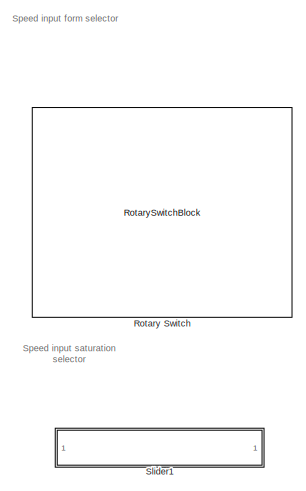
[diagram: root canvas - part 1/4, top left region]
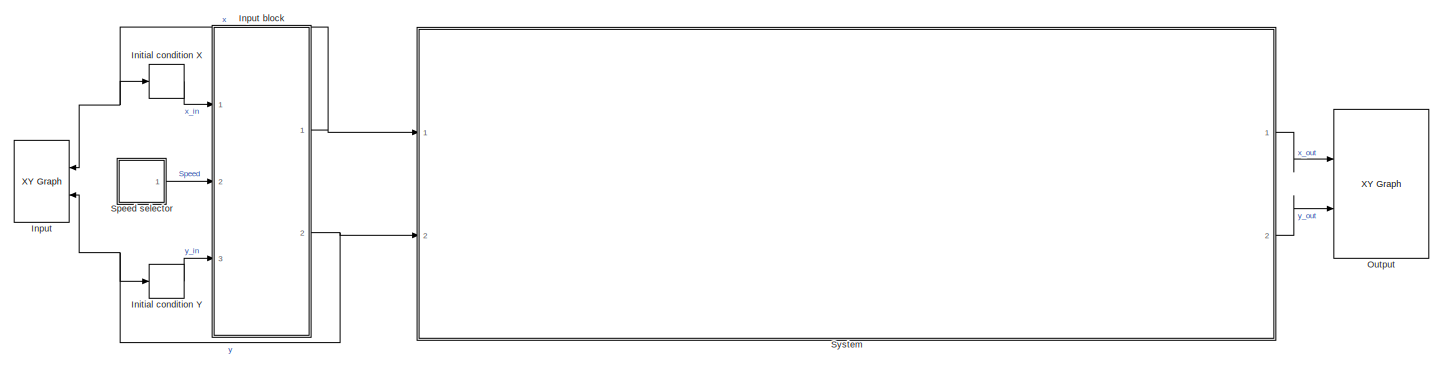
[diagram: root canvas - part 2/4, central region]
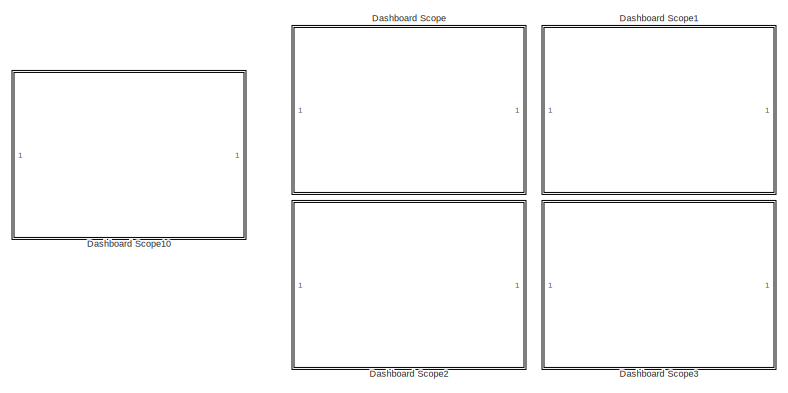
[diagram: root canvas - part 3/4, bottom left region]
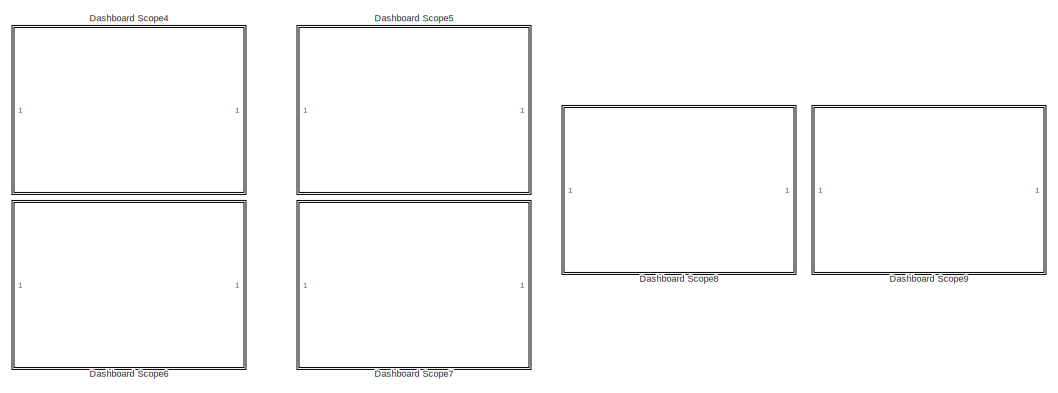
[diagram: root canvas - part 4/4, bottom right region]
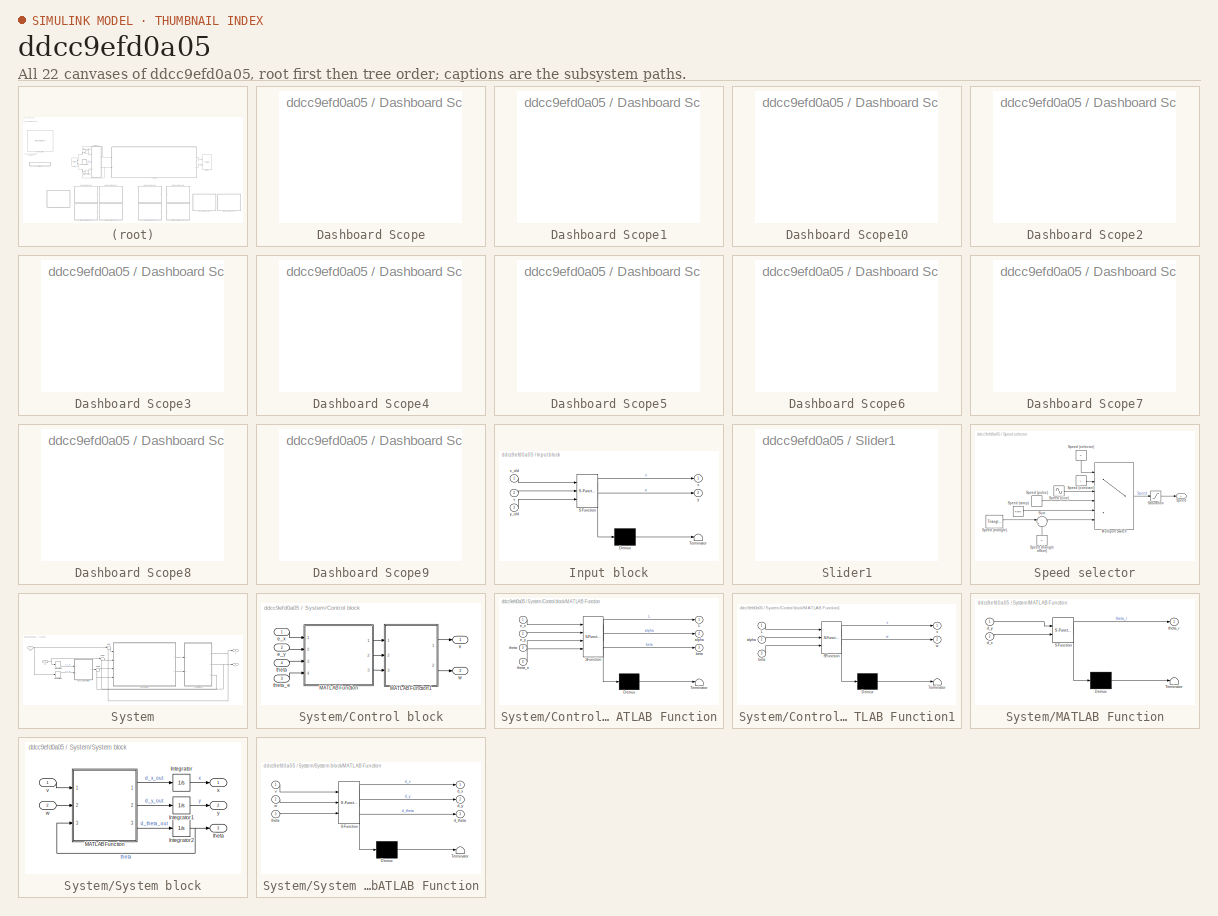
[diagram: thumbnail index - all 22 canvases of the model, root first then tree order]
MODEL slx_ddcc9efd0a05
KIND model
CONFIG AbsTol = auto
CONFIG EnableMultiTasking = off
CONFIG FixedStep = 0.01
CONFIG MaxStep = auto
CONFIG MinStep = auto
CONFIG RelTol = 1e-3
CONFIG SampleTimeConstraint = Unconstrained
CONFIG Solver = FixedStepAuto
CONFIG SolverName = FixedStepAuto
CONFIG StartTime = 0.0
CONFIG StopTime = 150
BLOCK [SubSystem] Dashboard Scope
  DialogController = hmiCreateDDGDialog
  IsWebBlock = on
  Ports = []
  RequestExecContextInheritance = off
BLOCK [SubSystem] Dashboard Scope1
  DialogController = hmiCreateDDGDialog
  IsWebBlock = on
  Ports = []
  RequestExecContextInheritance = off
BLOCK [SubSystem] Dashboard Scope10
  DialogController = hmiCreateDDGDialog
  IsWebBlock = on
  Ports = []
  RequestExecContextInheritance = off
BLOCK [SubSystem] Dashboard Scope2
  DialogController = hmiCreateDDGDialog
  IsWebBlock = on
  Ports = []
  RequestExecContextInheritance = off
BLOCK [SubSystem] Dashboard Scope3
  DialogController = hmiCreateDDGDialog
  IsWebBlock = on
  Ports = []
  RequestExecContextInheritance = off
BLOCK [SubSystem] Dashboard Scope4
  DialogController = hmiCreateDDGDialog
  IsWebBlock = on
  Ports = []
  RequestExecContextInheritance = off
BLOCK [SubSystem] Dashboard Scope5
  DialogController = hmiCreateDDGDialog
  IsWebBlock = on
  Ports = []
  RequestExecContextInheritance = off
BLOCK [SubSystem] Dashboard Scope6
  DialogController = hmiCreateDDGDialog
  IsWebBlock = on
  Ports = []
  RequestExecContextInheritance = off
BLOCK [SubSystem] Dashboard Scope7
  DialogController = hmiCreateDDGDialog
  IsWebBlock = on
  Ports = []
  RequestExecContextInheritance = off
BLOCK [SubSystem] Dashboard Scope8
  DialogController = hmiCreateDDGDialog
  IsWebBlock = on
  Ports = []
  RequestExecContextInheritance = off
BLOCK [SubSystem] Dashboard Scope9
  DialogController = hmiCreateDDGDialog
  IsWebBlock = on
  Ports = []
  RequestExecContextInheritance = off
BLOCK [Delay] Initial condition X
  DelayLength = 1
  InputPortMap = u0
  Ports = [1, 1]
BLOCK [Delay] Initial condition Y
  DelayLength = 1
  InputPortMap = u0
  Ports = [1, 1]
BLOCK [Reference] Input  REF=simulink/Sinks/XY Graph
  Ports = [2]
  SourceBlock = simulink/Sinks/XY Graph
  SourceProductBaseCode = SL
  SourceType = XY scope.
BLOCK [SubSystem] Input block
  ErrorFcn = Stateflow.Translate.translate
  PermitHierarchicalResolution = ExplicitOnly
  Ports = [3, 2]
  RequestExecContextInheritance = off
  SFBlockType = MATLAB Function
  TreatAsAtomicUnit = on
BLOCK [Demux] Input block/ Demux 
  Outputs = 1
  Ports = [1, 1]
BLOCK [S-Function] Input block/ SFunction 
  EnableBusSupport = on
  FunctionName = sf_sfun
  PortCounts = [3 3]
  Ports = [3, 3]
  SFcnIsStateOwnerBlock = off
  SFunctionDeploymentMode = off
  Tag = Stateflow S-Function sim_model_ver_tp2_V2_18a 5
BLOCK [Terminator] Input block/ Terminator 
BLOCK [Inport] Input block/v
  Port = 2
BLOCK [Outport] Input block/x
BLOCK [Inport] Input block/x_old
BLOCK [Outport] Input block/y
  Port = 2
BLOCK [Inport] Input block/y_old
  Port = 3
BLOCK [Reference] Output  REF=simulink/Sinks/XY Graph
  Ports = [2]
  SourceBlock = simulink/Sinks/XY Graph
  SourceProductBaseCode = SL
  SourceType = XY scope.
BLOCK [RotarySwitchBlock] Rotary Switch
  WebBlockId = 188
BLOCK [SubSystem] Slider1
  DialogController = hmiCreateDDGDialog
  IsWebBlock = on
  Ports = []
  RequestExecContextInheritance = off
BLOCK [SubSystem] Speed selector
  Ports = [0, 1]
  RequestExecContextInheritance = off
BLOCK [MultiPortSwitch] Speed selector/Multiport Switch
  InputSameDT = off
  Inputs = 5
  Ports = [6, 1]
  SaturateOnIntegerOverflow = off
BLOCK [Saturate] Speed selector/Saturation
  UpperLimit = 4.664899955035971
BLOCK [Outport] Speed selector/Speed
BLOCK [Constant] Speed selector/Speed (constant)
BLOCK [DiscretePulseGenerator] Speed selector/Speed (pulse)
  Period = 10
  Ports = [0, 1]
  PulseType = Time based
  PulseWidth = 50
BLOCK [Reference] Speed selector/Speed (ramp)  REF=simulink/Sources/Ramp
  Ports = [0, 1]
  SourceBlock = simulink/Sources/Ramp
  SourceProductBaseCode = SL
  SourceType = Ramp
BLOCK [Constant] Speed selector/Speed (selector)
  Value = 5
BLOCK [Sin] Speed selector/Speed (sine)
  Bias = 1
  Ports = [0, 1]
  SampleTime = 0
BLOCK [Constant] Speed selector/Speed (triangle offset)
  Value = 3
BLOCK [Reference] Speed selector/Speed (triangle)  REF=powerlib_meascontrol/Pulse & Signal
Generators/Triangle
Generator
  Ports = [0, 1]
  SourceBlock = powerlib_meascontrol/Pulse & Signal\nGenerators/Triangle\nGenerator
  SourceProductBaseCode = PS
  SourceType = Triangle Generator
BLOCK [Sum] Speed selector/Sum
  Inputs = |++
  Ports = [2, 1]
BLOCK [SubSystem] System
  Ports = [2, 2]
  RequestExecContextInheritance = off
BLOCK [SubSystem] System/Control block
  Ports = [4, 2]
  RequestExecContextInheritance = off
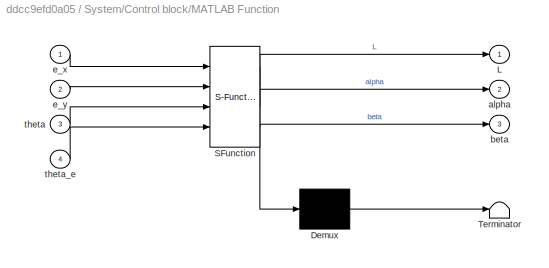
BLOCK [SubSystem] System/Control block/MATLAB Function
  ErrorFcn = Stateflow.Translate.translate
  PermitHierarchicalResolution = ExplicitOnly
  Ports = [4, 3]
  RequestExecContextInheritance = off
  SFBlockType = MATLAB Function
  TreatAsAtomicUnit = on
BLOCK [Demux] System/Control block/MATLAB Function/ Demux 
  Outputs = 1
  Ports = [1, 1]
BLOCK [S-Function] System/Control block/MATLAB Function/ SFunction 
  EnableBusSupport = on
  FunctionName = sf_sfun
  PortCounts = [4 4]
  Ports = [4, 4]
  SFcnIsStateOwnerBlock = off
  SFunctionDeploymentMode = off
  Tag = Stateflow S-Function sim_model_ver_tp2_V2_18a 1
BLOCK [Terminator] System/Control block/MATLAB Function/ Terminator 
BLOCK [Outport] System/Control block/MATLAB Function/L
  VectorParamsAs1DForOutWhenUnconnected = off
BLOCK [Outport] System/Control block/MATLAB Function/alpha
  Port = 2
  VectorParamsAs1DForOutWhenUnconnected = off
BLOCK [Outport] System/Control block/MATLAB Function/beta
  Port = 3
  VectorParamsAs1DForOutWhenUnconnected = off
BLOCK [Inport] System/Control block/MATLAB Function/e_x
BLOCK [Inport] System/Control block/MATLAB Function/e_y
  Port = 2
BLOCK [Inport] System/Control block/MATLAB Function/theta
  Port = 3
BLOCK [Inport] System/Control block/MATLAB Function/theta_e
  Port = 4
BLOCK [SubSystem] System/Control block/MATLAB Function1
  ErrorFcn = Stateflow.Translate.translate
  PermitHierarchicalResolution = ExplicitOnly
  Ports = [3, 2]
  RequestExecContextInheritance = off
  SFBlockType = MATLAB Function
  TreatAsAtomicUnit = on
BLOCK [Demux] System/Control block/MATLAB Function1/ Demux 
  Outputs = 1
  Ports = [1, 1]
BLOCK [S-Function] System/Control block/MATLAB Function1/ SFunction 
  EnableBusSupport = on
  FunctionName = sf_sfun
  PortCounts = [3 3]
  Ports = [3, 3]
  SFcnIsStateOwnerBlock = off
  SFunctionDeploymentMode = off
  Tag = Stateflow S-Function sim_model_ver_tp2_V2_18a 3
BLOCK [Terminator] System/Control block/MATLAB Function1/ Terminator 
BLOCK [Inport] System/Control block/MATLAB Function1/L
BLOCK [Inport] System/Control block/MATLAB Function1/alpha
  Port = 2
BLOCK [Inport] System/Control block/MATLAB Function1/beta
  Port = 3
BLOCK [Outport] System/Control block/MATLAB Function1/v
  VectorParamsAs1DForOutWhenUnconnected = off
BLOCK [Outport] System/Control block/MATLAB Function1/w
  Port = 2
  VectorParamsAs1DForOutWhenUnconnected = off
BLOCK [Inport] System/Control block/e_x
BLOCK [Inport] System/Control block/e_y
  Port = 2
BLOCK [Inport] System/Control block/theta
  Port = 4
BLOCK [Inport] System/Control block/theta_e
  Port = 3
BLOCK [Outport] System/Control block/v
  VectorParamsAs1DForOutWhenUnconnected = off
BLOCK [Outport] System/Control block/w
  Port = 2
  VectorParamsAs1DForOutWhenUnconnected = off
BLOCK [Derivative] System/Derivative
BLOCK [Derivative] System/Derivative1
BLOCK [SubSystem] System/MATLAB Function
  ErrorFcn = Stateflow.Translate.translate
  PermitHierarchicalResolution = ExplicitOnly
  Ports = [2, 1]
  RequestExecContextInheritance = off
  SFBlockType = MATLAB Function
  TreatAsAtomicUnit = on
BLOCK [Demux] System/MATLAB Function/ Demux 
  Outputs = 1
  Ports = [1, 1]
BLOCK [S-Function] System/MATLAB Function/ SFunction 
  EnableBusSupport = on
  FunctionName = sf_sfun
  PortCounts = [2 2]
  Ports = [2, 2]
  SFcnIsStateOwnerBlock = off
  SFunctionDeploymentMode = off
  Tag = Stateflow S-Function sim_model_ver_tp2_V2_18a 4
BLOCK [Terminator] System/MATLAB Function/ Terminator 
BLOCK [Inport] System/MATLAB Function/d_x
  Port = 2
BLOCK [Inport] System/MATLAB Function/d_y
BLOCK [Outport] System/MATLAB Function/theta_r
  VectorParamsAs1DForOutWhenUnconnected = off
BLOCK [Sum] System/Sum
  Inputs = |+-
  Ports = [2, 1]
BLOCK [Sum] System/Sum1
  Inputs = |+-
  Ports = [2, 1]
BLOCK [Sum] System/Sum2
  Inputs = |+-
  Ports = [2, 1]
BLOCK [SubSystem] System/System block
  Ports = [2, 3]
  RequestExecContextInheritance = off
BLOCK [Integrator] System/System block/Integrator
  Ports = [1, 1]
BLOCK [Integrator] System/System block/Integrator1
  Ports = [1, 1]
BLOCK [Integrator] System/System block/Integrator2
  Ports = [1, 1]
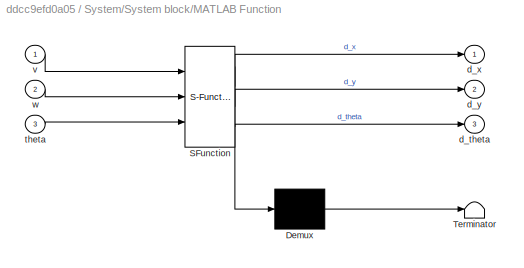
BLOCK [SubSystem] System/System block/MATLAB Function
  ErrorFcn = Stateflow.Translate.translate
  PermitHierarchicalResolution = ExplicitOnly
  Ports = [3, 3]
  RequestExecContextInheritance = off
  SFBlockType = MATLAB Function
  TreatAsAtomicUnit = on
BLOCK [Demux] System/System block/MATLAB Function/ Demux 
  Outputs = 1
  Ports = [1, 1]
BLOCK [S-Function] System/System block/MATLAB Function/ SFunction 
  EnableBusSupport = on
  FunctionName = sf_sfun
  PortCounts = [3 4]
  Ports = [3, 4]
  SFcnIsStateOwnerBlock = off
  SFunctionDeploymentMode = off
  Tag = Stateflow S-Function sim_model_ver_tp2_V2_18a 2
BLOCK [Terminator] System/System block/MATLAB Function/ Terminator 
BLOCK [Outport] System/System block/MATLAB Function/d_theta
  Port = 3
  VectorParamsAs1DForOutWhenUnconnected = off
BLOCK [Outport] System/System block/MATLAB Function/d_x
  VectorParamsAs1DForOutWhenUnconnected = off
BLOCK [Outport] System/System block/MATLAB Function/d_y
  Port = 2
  VectorParamsAs1DForOutWhenUnconnected = off
BLOCK [Inport] System/System block/MATLAB Function/theta
  Port = 3
BLOCK [Inport] System/System block/MATLAB Function/v
BLOCK [Inport] System/System block/MATLAB Function/w
  Port = 2
BLOCK [Outport] System/System block/theta
  Port = 3
  VectorParamsAs1DForOutWhenUnconnected = off
BLOCK [Inport] System/System block/v
BLOCK [Inport] System/System block/w
  Port = 2
BLOCK [Outport] System/System block/x
  VectorParamsAs1DForOutWhenUnconnected = off
BLOCK [Outport] System/System block/y
  Port = 2
  VectorParamsAs1DForOutWhenUnconnected = off
BLOCK [Outport] System/x
  VectorParamsAs1DForOutWhenUnconnected = off
BLOCK [Inport] System/xr
BLOCK [Outport] System/y
  Port = 2
  VectorParamsAs1DForOutWhenUnconnected = off
BLOCK [Inport] System/yr
  Port = 2
ANNOTATION (root): Speed input form selector
ANNOTATION (root): Speed input saturation selector
LINE Initial condition X:1 -> Input block:1
LINE Initial condition Y:1 -> Input block:3
NET Input block:1 -> Initial condition X:1, Input:1, System:1
NET Input block:2 -> Initial condition Y:1, Input:2, System:2
LINE Speed selector/Multiport Switch:1 -> Speed selector/Saturation:1
LINE Speed selector/Saturation:1 -> Speed selector/Speed:1
LINE Speed selector/Speed (constant):1 -> Speed selector/Multiport Switch:2
LINE Speed selector/Speed (pulse):1 -> Speed selector/Multiport Switch:4
LINE Speed selector/Speed (ramp):1 -> Speed selector/Multiport Switch:5
LINE Speed selector/Speed (selector):1 -> Speed selector/Multiport Switch:1
LINE Speed selector/Speed (sine):1 -> Speed selector/Multiport Switch:3
LINE Speed selector/Speed (triangle offset):1 -> Speed selector/Sum:2
LINE Speed selector/Speed (triangle):1 -> Speed selector/Sum:1
LINE Speed selector/Sum:1 -> Speed selector/Multiport Switch:6
LINE Speed selector:1 -> Input block:2
LINE System/Control block/MATLAB Function1:1 -> System/Control block/v:1
LINE System/Control block/MATLAB Function1:2 -> System/Control block/w:1
LINE System/Control block/MATLAB Function:1 -> System/Control block/MATLAB Function1:1
LINE System/Control block/MATLAB Function:2 -> System/Control block/MATLAB Function1:2
LINE System/Control block/MATLAB Function:3 -> System/Control block/MATLAB Function1:3
LINE System/Control block/e_x:1 -> System/Control block/MATLAB Function:1
LINE System/Control block/e_y:1 -> System/Control block/MATLAB Function:2
LINE System/Control block/theta:1 -> System/Control block/MATLAB Function:3
LINE System/Control block/theta_e:1 -> System/Control block/MATLAB Function:4
LINE System/Control block:1 -> System/System block:1
LINE System/Control block:2 -> System/System block:2
LINE System/Derivative1:1 -> System/MATLAB Function:2
LINE System/Derivative:1 -> System/MATLAB Function:1
LINE System/MATLAB Function:1 -> System/Sum2:1
LINE System/Sum1:1 -> System/Control block:2
LINE System/Sum2:1 -> System/Control block:3
LINE System/Sum:1 -> System/Control block:1
LINE System/System block/Integrator1:1 -> System/System block/y:1
NET System/System block/Integrator2:1 -> System/System block/MATLAB Function:3, System/System block/theta:1
LINE System/System block/Integrator:1 -> System/System block/x:1
LINE System/System block/MATLAB Function:1 -> System/System block/Integrator:1
LINE System/System block/MATLAB Function:2 -> System/System block/Integrator1:1
LINE System/System block/MATLAB Function:3 -> System/System block/Integrator2:1
LINE System/System block/v:1 -> System/System block/MATLAB Function:1
LINE System/System block/w:1 -> System/System block/MATLAB Function:2
NET System/System block:1 -> System/Sum:2, System/x:1
NET System/System block:2 -> System/Sum1:2, System/y:1
NET System/System block:3 -> System/Control block:4, System/Sum2:2
NET System/xr:1 -> System/Derivative1:1, System/Sum:1
NET System/yr:1 -> System/Derivative:1, System/Sum1:1
LINE System:1 -> Output:1
LINE System:2 -> Output:2
note: NET lines group one-source signal fan-out (src -> all destinations, sorted); 1:1 wires keep LINE
CHART System/Control block/MATLAB Function states=1 transitions=1
  STATE_LABEL 'eML_blk_kernel()'
  STATE_LABEL 'SCRIPT:\nfunction [L , alpha, beta] = to_parameters(e_x , e_y , theta , theta_e)\n    L = sqrt(e_x * e_x + e_y * e_y);\n    alpha = mod(atan2(e_y , e_x) , 2*pi) - theta;\n    beta = theta_e - alpha;\nend'
CHART System/System block/MATLAB Function states=1 transitions=1
  STATE_LABEL 'eML_blk_kernel()'
  STATE_LABEL 'SCRIPT:\nfunction [d_x,  d_y,  d_theta] = system(v , w , theta)\n\n    d_x = v*cos(theta);\n    d_y = v*sin(theta);\n    d_theta = w;\n\nend\n'
CHART System/Control block/MATLAB Function1 states=1 transitions=1
  STATE_LABEL 'eML_blk_kernel()'
  STATE_LABEL 'SCRIPT:\nfunction [v , w] = to_v_w(L, alpha , beta)\n\n%old\n% k_L = -3;\n% k_alpha = -210;\n% k_beta = 4.5;\n\n\nk_L = -5.5;\nk_alpha = -220;\nk_beta = 2;\n\nv = -k_L * L;\nw = -k_alpha * alpha - k_beta * beta;\n\nend\n'
CHART System/MATLAB Function states=1 transitions=1
  STATE_LABEL 'eML_blk_kernel()'
  STATE_LABEL 'SCRIPT:\nfunction theta_r = arctan2(d_y , d_x)\n    theta_r = mod(atan2(d_y , d_x) , 2*pi);\nend\n'
CHART Input block states=1 transitions=1
  STATE_LABEL 'eML_blk_kernel()'
  STATE_LABEL 'SCRIPT:\nfunction [x, y] = input(x_old , v , y_old)\n\n    h = 10; %Straight line distance\n    d = 5; %"Circle" diameter\n    \n    Ts = 0.01; %MUST also Simulink sample time\n\n    is_on_part_1_flag = ((x_old == 0 && y_old < h));\n    is_on_part_2_flag = ((x_old < d && y_old >= h));\n    is_on_part_3_flag = ((x_old >= d && y_old >=0));\n    is_on_part_4_flag = (~is_on_part_1_flag &&...\n                    ...<+1013ch>'
